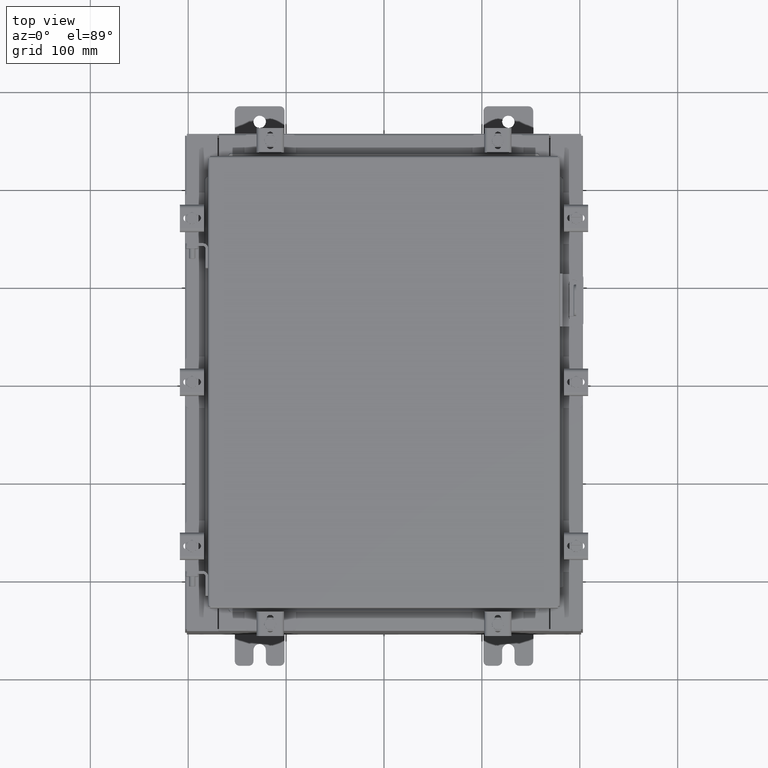
[diagram: clean part render]
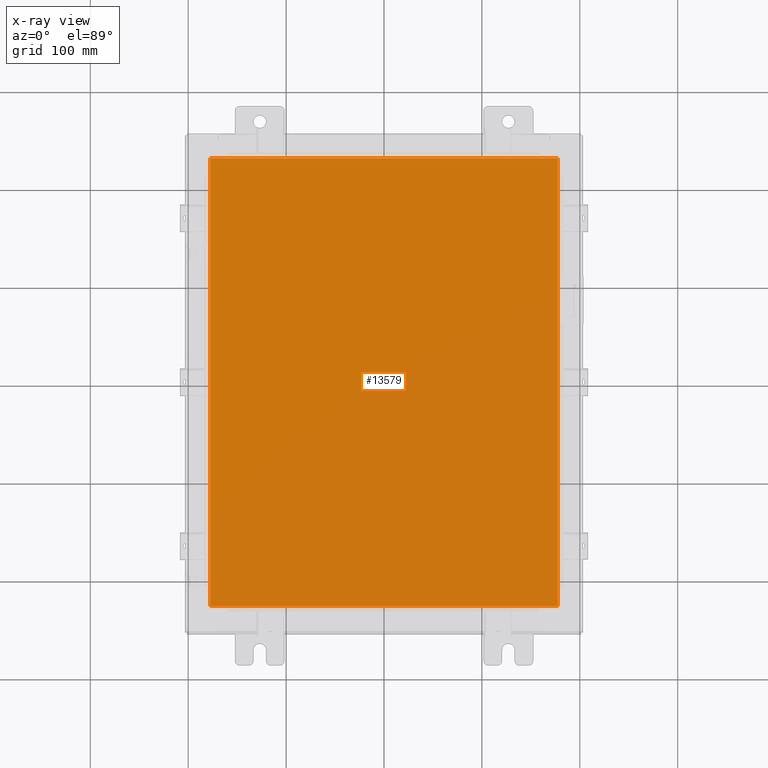
[diagram: x-ray — body ghosted, one internal face saturated and labeled with its STEP entity id]
A machine part, top view, then the same camera in x-ray: the body is ghosted and one INTERNAL B-rep face — a face not visible from any outside direction — is saturated and labeled: STEP entity #13579.
In plain terms, the highlighted planar face has unit normal (0, 0, -1).
Its self-contained STEP definition (entity closure, byte-faithful):
#2001 = CARTESIAN_POINT ( 'NONE',  ( -6.990300000000003100, 9.006299999999996000, -0.07470000000000015500 ) ) ;
#3913 = DIRECTION ( 'NONE',  ( 0.0000000000000000000, 0.0000000000000000000, -1.000000000000000000 ) ) ;
#4913 = EDGE_CURVE ( 'NONE', #5524, #5193, #15392, .T. ) ;
#5193 = VERTEX_POINT ( 'NONE', #14736 ) ;
#5524 = VERTEX_POINT ( 'NONE', #12128 ) ;
#5851 = EDGE_CURVE ( 'NONE', #5193, #21655, #9113, .T. ) ;
#6411 = AXIS2_PLACEMENT_3D ( 'NONE', #10842, #3913, #16096 ) ;
#6919 = DIRECTION ( 'NONE',  ( 1.000000000000000000, -0.0000000000000000000, -0.0000000000000000000 ) ) ;
#7057 = CARTESIAN_POINT ( 'NONE',  ( 6.990299999999996000, 9.006299999999996000, -0.07470000000000015500 ) ) ;
#8616 = VECTOR ( 'NONE', #9399, 39.37007874015748100 ) ;
#9113 = LINE ( 'NONE', #18145, #17827 ) ;
#9399 = DIRECTION ( 'NONE',  ( 0.0000000000000000000, -1.000000000000000000, 0.0000000000000000000 ) ) ;
#9685 = FACE_OUTER_BOUND ( 'NONE', #11126, .T. ) ;
#10842 = CARTESIAN_POINT ( 'NONE',  ( 0.0000000000000000000, 0.0000000000000000000, -0.07470000000000015500 ) ) ;
#10960 = ORIENTED_EDGE ( 'NONE', *, *, #18821, .F. ) ;
#11126 = EDGE_LOOP ( 'NONE', ( #20456, #16404, #19705, #10960 ) ) ;
#12128 = CARTESIAN_POINT ( 'NONE',  ( -6.990300000000002200, -9.006300000000003100, -0.07470000000000015500 ) ) ;
#12320 = VECTOR ( 'NONE', #16434, 39.37007874015748100 ) ;
#12957 = DIRECTION ( 'NONE',  ( 0.0000000000000000000, 1.000000000000000000, 0.0000000000000000000 ) ) ;
#13236 = LINE ( 'NONE', #14558, #8616 ) ;
#13569 = VERTEX_POINT ( 'NONE', #2001 ) ;
#13579 = ADVANCED_FACE ( 'NONE', ( #9685 ), #14329, .T. ) ;
#14329 = PLANE ( 'NONE',  #6411 ) ;
#14558 = CARTESIAN_POINT ( 'NONE',  ( -6.990300000000003100, 9.006299999999996000, -0.07470000000000015500 ) ) ;
#14736 = CARTESIAN_POINT ( 'NONE',  ( 6.990299999999996800, -9.006300000000003100, -0.07470000000000015500 ) ) ;
#15392 = LINE ( 'NONE', #17344, #20011 ) ;
#15492 = EDGE_CURVE ( 'NONE', #13569, #5524, #13236, .T. ) ;
#16096 = DIRECTION ( 'NONE',  ( -1.000000000000000000, 0.0000000000000000000, -0.0000000000000000000 ) ) ;
#16404 = ORIENTED_EDGE ( 'NONE', *, *, #4913, .F. ) ;
#16434 = DIRECTION ( 'NONE',  ( -1.000000000000000000, -0.0000000000000000000, -0.0000000000000000000 ) ) ;
#17344 = CARTESIAN_POINT ( 'NONE',  ( -6.990300000000003100, -9.006300000000003100, -0.07470000000000015500 ) ) ;
#17827 = VECTOR ( 'NONE', #12957, 39.37007874015748100 ) ;
#18145 = CARTESIAN_POINT ( 'NONE',  ( 6.990299999999996800, -9.006300000000003100, -0.07470000000000015500 ) ) ;
#18821 = EDGE_CURVE ( 'NONE', #21655, #13569, #21596, .T. ) ;
#19705 = ORIENTED_EDGE ( 'NONE', *, *, #15492, .F. ) ;
#20011 = VECTOR ( 'NONE', #6919, 39.37007874015748100 ) ;
#20076 = CARTESIAN_POINT ( 'NONE',  ( 6.990299999999996800, 9.006299999999996000, -0.07470000000000015500 ) ) ;
#20456 = ORIENTED_EDGE ( 'NONE', *, *, #5851, .F. ) ;
#21596 = LINE ( 'NONE', #20076, #12320 ) ;
#21655 = VERTEX_POINT ( 'NONE', #7057 ) ;